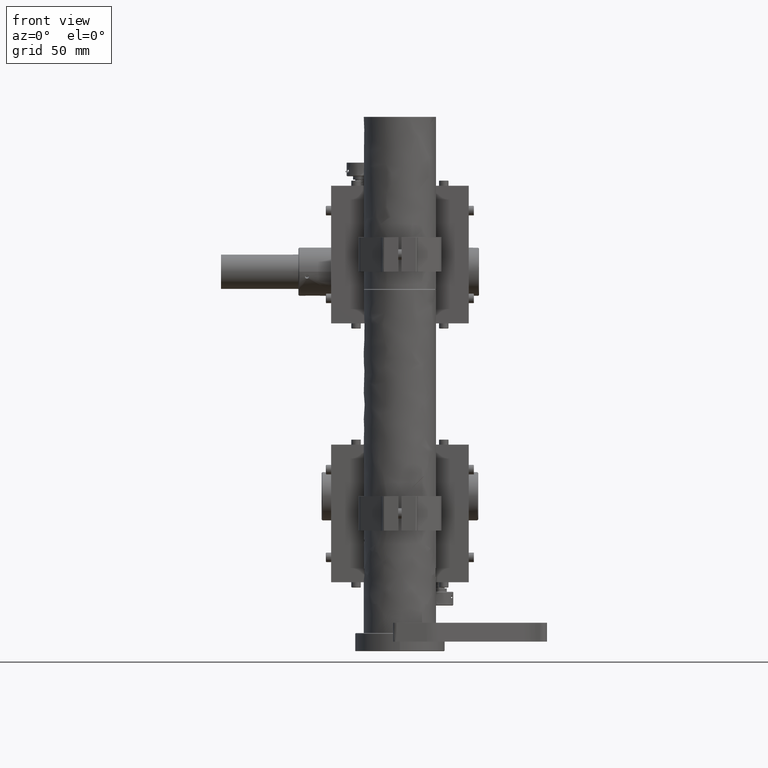
[diagram: clean part render]
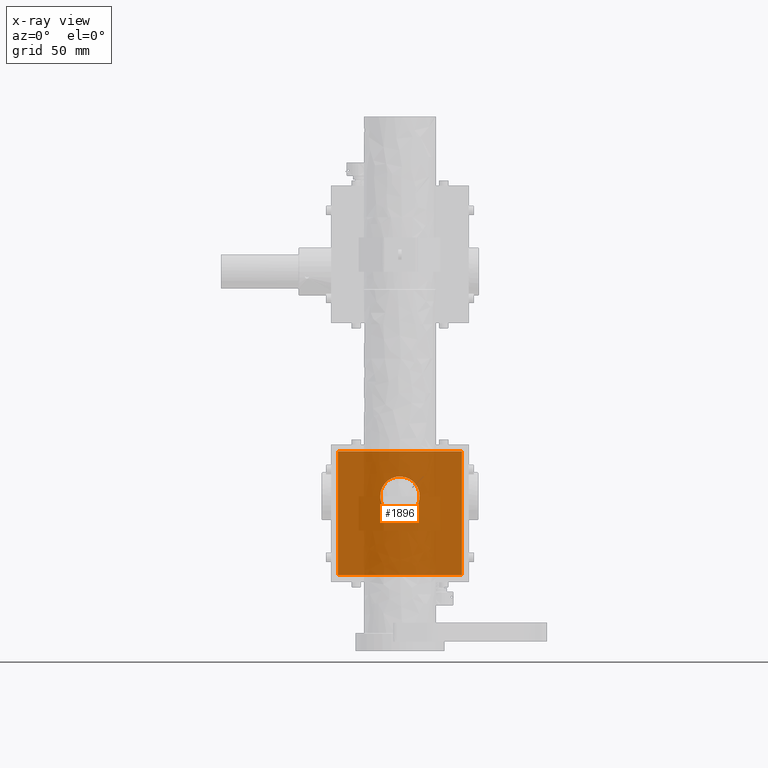
[diagram: x-ray — body ghosted, one internal face saturated and labeled with its STEP entity id]
A machine part, front view, then the same camera in x-ray: the body is ghosted and one INTERNAL B-rep face — a face not visible from any outside direction — is saturated and labeled: STEP entity #1896.
In plain terms, the highlighted face is a freeform B-spline surface patch.
Its self-contained STEP definition (entity closure, byte-faithful):
#1896=ADVANCED_FACE('',(#4982,#4335),#106625,.T.);
#4335=FACE_BOUND('',#7890,.T.);
#4982=FACE_OUTER_BOUND('',#7889,.T.);
#7889=EDGE_LOOP('',(#12935,#12936,#12937,#12938));
#7890=EDGE_LOOP('',(#12939,#12940,#12941));
#12935=ORIENTED_EDGE('',*,*,#87536,.F.);
#12936=ORIENTED_EDGE('',*,*,#87530,.F.);
#12937=ORIENTED_EDGE('',*,*,#87547,.F.);
#12938=ORIENTED_EDGE('',*,*,#87805,.F.);
#12939=ORIENTED_EDGE('',*,*,#87809,.T.);
#12940=ORIENTED_EDGE('',*,*,#87810,.T.);
#12941=ORIENTED_EDGE('',*,*,#87811,.T.);
#27691=B_SPLINE_CURVE_WITH_KNOTS('',1,(#138544,#138545),.UNSPECIFIED.,.F.,
 .F.,(2,2),(0.,72.0000000000004),.UNSPECIFIED.);
#27692=B_SPLINE_CURVE_WITH_KNOTS('',1,(#138546,#138547),.UNSPECIFIED.,.F.,
 .F.,(2,2),(0.,72.0000000000004),.UNSPECIFIED.);
#27698=B_SPLINE_CURVE_WITH_KNOTS('',1,(#138586,#138587),.UNSPECIFIED.,.F.,
 .F.,(2,2),(0.,72.),.UNSPECIFIED.);
#27699=B_SPLINE_CURVE_WITH_KNOTS('',1,(#138588,#138589),.UNSPECIFIED.,.F.,
 .F.,(2,2),(0.,72.),.UNSPECIFIED.);
#27721=B_SPLINE_CURVE_WITH_KNOTS('',1,(#138680,#138681),.UNSPECIFIED.,.F.,
 .F.,(2,2),(0.,72.),.UNSPECIFIED.);
#27722=B_SPLINE_CURVE_WITH_KNOTS('',1,(#138682,#138683),.UNSPECIFIED.,.F.,
 .F.,(2,2),(0.,72.),.UNSPECIFIED.);
#28177=B_SPLINE_CURVE_WITH_KNOTS('',1,(#141807,#141808),.UNSPECIFIED.,.F.,
 .F.,(2,2),(0.,72.0000000000003),.UNSPECIFIED.);
#28178=B_SPLINE_CURVE_WITH_KNOTS('',1,(#141809,#141810),.UNSPECIFIED.,.F.,
 .F.,(2,2),(0.,72.0000000000003),.UNSPECIFIED.);
#28179=B_SPLINE_CURVE_WITH_KNOTS('',1,(#141839,#141840),.UNSPECIFIED.,.F.,
 .F.,(2,2),(0.,72.),.UNSPECIFIED.);
#28180=B_SPLINE_CURVE_WITH_KNOTS('',1,(#141841,#141842),.UNSPECIFIED.,.F.,
 .F.,(2,2),(0.,72.0000000000004),.UNSPECIFIED.);
#28181=B_SPLINE_CURVE_WITH_KNOTS('',1,(#141843,#141844),.UNSPECIFIED.,.F.,
 .F.,(2,2),(0.,72.),.UNSPECIFIED.);
#28182=B_SPLINE_CURVE_WITH_KNOTS('',1,(#141845,#141846),.UNSPECIFIED.,.F.,
 .F.,(2,2),(0.,72.0000000000003),.UNSPECIFIED.);
#28186=B_SPLINE_CURVE_WITH_KNOTS('',1,(#141877,#141878),.UNSPECIFIED.,.F.,
 .F.,(2,2),(35.9979394211587,71.9958788423173),.UNSPECIFIED.);
#28187=B_SPLINE_CURVE_WITH_KNOTS('',1,(#141879,#141880),.UNSPECIFIED.,.F.,
 .F.,(2,2),(17.9989697105793,35.9979394211587),.UNSPECIFIED.);
#28192=B_SPLINE_CURVE_WITH_KNOTS('',1,(#141891,#141892),.UNSPECIFIED.,.F.,
 .F.,(2,2),(0.,17.9989697105793),.UNSPECIFIED.);
#48135=PCURVE('',#106599,#63631);
#48142=PCURVE('',#106600,#63638);
#48166=PCURVE('',#106601,#63662);
#48654=PCURVE('',#106624,#64150);
#48658=PCURVE('',#106625,#64154);
#48659=PCURVE('',#106625,#64155);
#48660=PCURVE('',#106625,#64156);
#48661=PCURVE('',#106625,#64157);
#48662=PCURVE('',#106625,#64158);
#48663=PCURVE('',#106625,#64159);
#48664=PCURVE('',#106625,#64160);
#48668=PCURVE('',#105374,#64164);
#48669=PCURVE('',#105374,#64165);
#48674=PCURVE('',#105375,#64170);
#63631=DEFINITIONAL_REPRESENTATION('',(#27692),#277684);
#63638=DEFINITIONAL_REPRESENTATION('',(#27699),#277684);
#63662=DEFINITIONAL_REPRESENTATION('',(#27722),#277684);
#64150=DEFINITIONAL_REPRESENTATION('',(#28178),#277684);
#64154=DEFINITIONAL_REPRESENTATION('',(#28179),#277684);
#64155=DEFINITIONAL_REPRESENTATION('',(#28180),#277684);
#64156=DEFINITIONAL_REPRESENTATION('',(#28181),#277684);
#64157=DEFINITIONAL_REPRESENTATION('',(#28182),#277684);
#64158=DEFINITIONAL_REPRESENTATION('',(#97369),#277684);
#64159=DEFINITIONAL_REPRESENTATION('',(#97371),#277684);
#64160=DEFINITIONAL_REPRESENTATION('',(#97373),#277684);
#64164=DEFINITIONAL_REPRESENTATION('',(#28186),#277684);
#64165=DEFINITIONAL_REPRESENTATION('',(#28187),#277684);
#64170=DEFINITIONAL_REPRESENTATION('',(#28192),#277684);
#78223=SURFACE_CURVE('',#27691,(#48135,#48659),.PCURVE_S1.);
#78229=SURFACE_CURVE('',#27698,(#48142,#48658),.PCURVE_S1.);
#78240=SURFACE_CURVE('',#27721,(#48166,#48660),.PCURVE_S1.);
#78498=SURFACE_CURVE('',#28177,(#48654,#48661),.PCURVE_S1.);
#78502=SURFACE_CURVE('',#97368,(#48662,#48668),.PCURVE_S1.);
#78503=SURFACE_CURVE('',#97370,(#48663,#48674),.PCURVE_S1.);
#78504=SURFACE_CURVE('',#97372,(#48664,#48669),.PCURVE_S1.);
#87530=EDGE_CURVE('',#101054,#101051,#78223,.T.);
#87536=EDGE_CURVE('',#101051,#101058,#78229,.T.);
#87547=EDGE_CURVE('',#101065,#101054,#78240,.T.);
#87805=EDGE_CURVE('',#101058,#101065,#78498,.T.);
#87809=EDGE_CURVE('',#101248,#101246,#78502,.T.);
#87810=EDGE_CURVE('',#101246,#101247,#78503,.T.);
#87811=EDGE_CURVE('',#101247,#101248,#78504,.T.);
#97368=(
BOUNDED_CURVE()
B_SPLINE_CURVE(2,(#141847,#141848,#141849,#141850,#141851),
 .UNSPECIFIED.,.F.,.F.)
B_SPLINE_CURVE_WITH_KNOTS((3,2,3),(35.9979394211587,53.9969091317379,71.9958788423173),
 .UNSPECIFIED.)
CURVE()
GEOMETRIC_REPRESENTATION_ITEM()
RATIONAL_B_SPLINE_CURVE((1.,0.707106781186548,1.,0.707106781186548,1.))
REPRESENTATION_ITEM('')
);
#97369=(
BOUNDED_CURVE()
B_SPLINE_CURVE(2,(#141852,#141853,#141854,#141855,#141856),
 .UNSPECIFIED.,.F.,.F.)
B_SPLINE_CURVE_WITH_KNOTS((3,2,3),(35.9979394211587,53.996909131738,71.9958788423173),
 .UNSPECIFIED.)
CURVE()
GEOMETRIC_REPRESENTATION_ITEM()
RATIONAL_B_SPLINE_CURVE((1.,0.707106781186548,1.,0.707106781186548,1.))
REPRESENTATION_ITEM('')
);
#97370=(
BOUNDED_CURVE()
B_SPLINE_CURVE(2,(#141857,#141858,#141859),.UNSPECIFIED.,.F.,.F.)
B_SPLINE_CURVE_WITH_KNOTS((3,3),(0.,17.9989697105793),.UNSPECIFIED.)
CURVE()
GEOMETRIC_REPRESENTATION_ITEM()
RATIONAL_B_SPLINE_CURVE((1.,0.707106781186548,1.))
REPRESENTATION_ITEM('')
);
#97371=(
BOUNDED_CURVE()
B_SPLINE_CURVE(2,(#141860,#141861,#141862),.UNSPECIFIED.,.F.,.F.)
B_SPLINE_CURVE_WITH_KNOTS((3,3),(0.,17.9989697105793),.UNSPECIFIED.)
CURVE()
GEOMETRIC_REPRESENTATION_ITEM()
RATIONAL_B_SPLINE_CURVE((1.,0.707106781186551,1.))
REPRESENTATION_ITEM('')
);
#97372=(
BOUNDED_CURVE()
B_SPLINE_CURVE(2,(#141863,#141864,#141865),.UNSPECIFIED.,.F.,.F.)
B_SPLINE_CURVE_WITH_KNOTS((3,3),(17.9989697105793,35.9979394211587),
 .UNSPECIFIED.)
CURVE()
GEOMETRIC_REPRESENTATION_ITEM()
RATIONAL_B_SPLINE_CURVE((1.,0.707106781186553,1.))
REPRESENTATION_ITEM('')
);
#97373=(
BOUNDED_CURVE()
B_SPLINE_CURVE(2,(#141866,#141867,#141868),.UNSPECIFIED.,.F.,.F.)
B_SPLINE_CURVE_WITH_KNOTS((3,3),(17.9989697105793,35.9979394211587),
 .UNSPECIFIED.)
CURVE()
GEOMETRIC_REPRESENTATION_ITEM()
RATIONAL_B_SPLINE_CURVE((1.,0.707106781186553,1.))
REPRESENTATION_ITEM('')
);
#101051=VERTEX_POINT('',#133664);
#101054=VERTEX_POINT('',#133667);
#101058=VERTEX_POINT('',#133671);
#101065=VERTEX_POINT('',#133678);
#101246=VERTEX_POINT('',#133859);
#101247=VERTEX_POINT('',#133860);
#101248=VERTEX_POINT('',#133861);
#105374=(
BOUNDED_SURFACE()
B_SPLINE_SURFACE(1,2,((#128417,#128418,#128419,#128420,#128421,#128422,
#128423,#128424,#128425),(#128426,#128427,#128428,#128429,#128430,#128431,
#128432,#128433,#128434)),.UNSPECIFIED.,.F.,.F.,.F.)
B_SPLINE_SURFACE_WITH_KNOTS((2,2),(3,2,2,2,3),(0.,7.44000000000062),(0.,
1.5707963267949,3.14159265358979,4.71238898038469,6.28318530717959),
 .UNSPECIFIED.)
GEOMETRIC_REPRESENTATION_ITEM()
RATIONAL_B_SPLINE_SURFACE(((1.,0.707106781186548,1.,0.707106781186548,1.,
0.707106781186548,1.,0.707106781186548,1.),(1.,0.707106781186548,1.,0.707106781186548,
1.,0.707106781186548,1.,0.707106781186548,1.)))
REPRESENTATION_ITEM('')
SURFACE()
);
#105375=(
BOUNDED_SURFACE()
B_SPLINE_SURFACE(1,2,((#128435,#128436,#128437,#128438,#128439,#128440,
#128441,#128442,#128443),(#128444,#128445,#128446,#128447,#128448,#128449,
#128450,#128451,#128452)),.UNSPECIFIED.,.F.,.F.,.F.)
B_SPLINE_SURFACE_WITH_KNOTS((2,2),(3,2,2,2,3),(0.,7.44000000000062),(0.,
1.5707963267949,3.14159265358979,4.71238898038469,6.28318530717959),
 .UNSPECIFIED.)
GEOMETRIC_REPRESENTATION_ITEM()
RATIONAL_B_SPLINE_SURFACE(((1.,0.707106781186548,1.,0.707106781186548,1.,
0.707106781186548,1.,0.707106781186548,1.),(1.,0.707106781186548,1.,0.707106781186548,
1.,0.707106781186548,1.,0.707106781186548,1.)))
REPRESENTATION_ITEM('')
SURFACE()
);
#106599=B_SPLINE_SURFACE_WITH_KNOTS('',1,1,((#127333,#127334),(#127335,
#127336)),.UNSPECIFIED.,.F.,.F.,.F.,(2,2),(2,2),(-43.3200000003167,43.3200000003165),
(-35.5200000000019,35.5200000000019),.UNSPECIFIED.);
#106600=B_SPLINE_SURFACE_WITH_KNOTS('',1,1,((#127337,#127338),(#127339,
#127340)),.UNSPECIFIED.,.F.,.F.,.F.,(2,2),(2,2),(-43.3200000032431,43.3200000032431),
(-35.5200000000022,35.5200000000022),.UNSPECIFIED.);
#106601=B_SPLINE_SURFACE_WITH_KNOTS('',1,1,((#127413,#127414),(#127415,
#127416)),.UNSPECIFIED.,.F.,.F.,.F.,(2,2),(2,2),(-43.3200000032431,43.3200000032431),
(-35.5200000000019,35.5200000000019),.UNSPECIFIED.);
#106624=B_SPLINE_SURFACE_WITH_KNOTS('',1,1,((#128409,#128410),(#128411,
#128412)),.UNSPECIFIED.,.F.,.F.,.F.,(2,2),(2,2),(-43.3200000003167,43.3200000003165),
(-35.5200000000014,35.5200000000015),.UNSPECIFIED.);
#106625=B_SPLINE_SURFACE_WITH_KNOTS('',1,1,((#128413,#128414),(#128415,
#128416)),.UNSPECIFIED.,.F.,.F.,.F.,(2,2),(2,2),(-86.640000000533,1.71786673774932E-09),
(-5.55576917804501E-10,86.6400000016956),.UNSPECIFIED.);
#127333=CARTESIAN_POINT('',(235.797538868108,-79.0200000000027,-122.820000000569));
#127334=CARTESIAN_POINT('',(235.797538868108,-7.97999999999887,-122.820000000569));
#127335=CARTESIAN_POINT('',(235.797538868108,-79.0200000000031,-36.1799999999361));
#127336=CARTESIAN_POINT('',(235.797538868108,-7.97999999999929,-36.1799999999358));
#127337=CARTESIAN_POINT('',(156.47753886585,-7.97999999999838,-43.4999999987304));
#127338=CARTESIAN_POINT('',(156.477538865849,-79.0200000000027,-43.4999999987304));
#127339=CARTESIAN_POINT('',(243.117538872336,-7.9799999999993,-43.4999999987304));
#127340=CARTESIAN_POINT('',(243.117538872335,-79.0200000000036,-43.4999999987304));
#127413=CARTESIAN_POINT('',(156.477538865849,-79.0200000000022,-115.49999999873));
#127414=CARTESIAN_POINT('',(156.47753886585,-7.97999999999839,-115.49999999873));
#127415=CARTESIAN_POINT('',(243.117538872335,-79.0200000000032,-115.49999999873));
#127416=CARTESIAN_POINT('',(243.117538872336,-7.97999999999936,-115.49999999873));
#128409=CARTESIAN_POINT('',(163.797538868108,-7.97999999999893,-122.820000000569));
#128410=CARTESIAN_POINT('',(163.797538868108,-79.0200000000018,-122.820000000569));
#128411=CARTESIAN_POINT('',(163.797538868108,-7.9799999999994,-36.1799999999357));
#128412=CARTESIAN_POINT('',(163.797538868108,-79.0200000000023,-36.1799999999361));
#128413=CARTESIAN_POINT('',(156.477538865842,-73.0000000000015,-122.820000001041));
#128414=CARTESIAN_POINT('',(243.117538868094,-73.0000000000015,-122.820000001041));
#128415=CARTESIAN_POINT('',(156.477538865842,-73.0000000000015,-36.1799999987897));
#128416=CARTESIAN_POINT('',(243.117538868094,-73.0000000000015,-36.1799999987897));
#128417=CARTESIAN_POINT('',(188.339038866395,-72.2800000000012,-89.5000000005077));
#128418=CARTESIAN_POINT('',(188.339038866395,-72.2800000000012,-100.958500000508));
#128419=CARTESIAN_POINT('',(199.797538866395,-72.2800000000012,-100.958500000508));
#128420=CARTESIAN_POINT('',(211.256038866395,-72.2800000000012,-100.958500000508));
#128421=CARTESIAN_POINT('',(211.256038866395,-72.2800000000012,-89.5000000005077));
#128422=CARTESIAN_POINT('',(211.256038866395,-72.2800000000012,-78.0415000005077));
#128423=CARTESIAN_POINT('',(199.797538866395,-72.2800000000012,-78.0415000005077));
#128424=CARTESIAN_POINT('',(188.339038866395,-72.2800000000012,-78.0415000005077));
#128425=CARTESIAN_POINT('',(188.339038866395,-72.2800000000012,-89.5000000005077));
#128426=CARTESIAN_POINT('',(188.339038866395,-79.7200000000018,-89.5000000005077));
#128427=CARTESIAN_POINT('',(188.339038866395,-79.7200000000018,-100.958500000508));
#128428=CARTESIAN_POINT('',(199.797538866395,-79.7200000000018,-100.958500000508));
#128429=CARTESIAN_POINT('',(211.256038866395,-79.7200000000018,-100.958500000508));
#128430=CARTESIAN_POINT('',(211.256038866395,-79.7200000000018,-89.5000000005076));
#128431=CARTESIAN_POINT('',(211.256038866395,-79.7200000000018,-78.0415000005076));
#128432=CARTESIAN_POINT('',(199.797538866395,-79.7200000000018,-78.0415000005076));
#128433=CARTESIAN_POINT('',(188.339038866395,-79.7200000000018,-78.0415000005077));
#128434=CARTESIAN_POINT('',(188.339038866395,-79.7200000000018,-89.5000000005077));
#128435=CARTESIAN_POINT('',(188.339038866395,-72.2800000000012,-89.5000000005077));
#128436=CARTESIAN_POINT('',(188.339038866395,-72.2800000000012,-100.958500000508));
#128437=CARTESIAN_POINT('',(199.797538866395,-72.2800000000012,-100.958500000508));
#128438=CARTESIAN_POINT('',(211.256038866395,-72.2800000000012,-100.958500000508));
#128439=CARTESIAN_POINT('',(211.256038866395,-72.2800000000012,-89.5000000005077));
#128440=CARTESIAN_POINT('',(211.256038866395,-72.2800000000012,-78.0415000005077));
#128441=CARTESIAN_POINT('',(199.797538866395,-72.2800000000012,-78.0415000005077));
#128442=CARTESIAN_POINT('',(188.339038866395,-72.2800000000012,-78.0415000005077));
#128443=CARTESIAN_POINT('',(188.339038866395,-72.2800000000012,-89.5000000005077));
#128444=CARTESIAN_POINT('',(188.339038866395,-79.7200000000018,-89.5000000005077));
#128445=CARTESIAN_POINT('',(188.339038866395,-79.7200000000018,-100.958500000508));
#128446=CARTESIAN_POINT('',(199.797538866395,-79.7200000000018,-100.958500000508));
#128447=CARTESIAN_POINT('',(211.256038866395,-79.7200000000018,-100.958500000508));
#128448=CARTESIAN_POINT('',(211.256038866395,-79.7200000000018,-89.5000000005076));
#128449=CARTESIAN_POINT('',(211.256038866395,-79.7200000000018,-78.0415000005076));
#128450=CARTESIAN_POINT('',(199.797538866395,-79.7200000000018,-78.0415000005076));
#128451=CARTESIAN_POINT('',(188.339038866395,-79.7200000000018,-78.0415000005077));
#128452=CARTESIAN_POINT('',(188.339038866395,-79.7200000000018,-89.5000000005077));
#133664=CARTESIAN_POINT('',(235.797538866723,-73.0000000000021,-43.499999998895));
#133667=CARTESIAN_POINT('',(235.797538867973,-73.0000000000018,-115.499999998895));
#133671=CARTESIAN_POINT('',(163.797538866723,-73.0000000000016,-43.5000000001456));
#133678=CARTESIAN_POINT('',(163.797538867973,-73.0000000000013,-115.500000000145));
#133859=CARTESIAN_POINT('',(199.797538866395,-73.0000000000017,-78.0415000005077));
#133860=CARTESIAN_POINT('',(188.339038866395,-73.0000000000016,-89.5000000005077));
#133861=CARTESIAN_POINT('',(199.797538866395,-73.0000000000016,-100.958500000508));
#138544=CARTESIAN_POINT('',(235.797538867973,-73.0000000000018,-115.499999998895));
#138545=CARTESIAN_POINT('',(235.797538866723,-73.0000000000021,-43.499999998895));
#138546=CARTESIAN_POINT('',(-35.9999999987244,-29.5000000000012));
#138547=CARTESIAN_POINT('',(36.0000000012753,-29.5000000000012));
#138586=CARTESIAN_POINT('',(235.797538866723,-73.0000000000021,-43.499999998895));
#138587=CARTESIAN_POINT('',(163.797538866723,-73.0000000000016,-43.5000000001456));
#138588=CARTESIAN_POINT('',(35.9999999969378,29.500000000001));
#138589=CARTESIAN_POINT('',(-36.0000000030622,29.500000000001));
#138680=CARTESIAN_POINT('',(163.797538867973,-73.0000000000013,-115.500000000145));
#138681=CARTESIAN_POINT('',(235.797538867973,-73.0000000000018,-115.499999998895));
#138682=CARTESIAN_POINT('',(-36.0000000011862,-29.5000000000008));
#138683=CARTESIAN_POINT('',(35.9999999988138,-29.5000000000008));
#141807=CARTESIAN_POINT('',(163.797538866723,-73.0000000000016,-43.5000000001456));
#141808=CARTESIAN_POINT('',(163.797538867973,-73.0000000000013,-115.500000000145));
#141809=CARTESIAN_POINT('',(35.9999999993994,29.5000000000008));
#141810=CARTESIAN_POINT('',(-36.0000000006004,29.5000000000008));
#141839=CARTESIAN_POINT('',(-7.3199999984697,79.319999999632));
#141840=CARTESIAN_POINT('',(-7.3200000003456,7.31999999963202));
#141841=CARTESIAN_POINT('',(-79.3199999984694,79.320000001508));
#141842=CARTESIAN_POINT('',(-7.3199999984697,79.319999999632));
#141843=CARTESIAN_POINT('',(-79.3200000003454,7.32000000150802));
#141844=CARTESIAN_POINT('',(-79.3199999984694,79.320000001508));
#141845=CARTESIAN_POINT('',(-7.3200000003456,7.31999999963202));
#141846=CARTESIAN_POINT('',(-79.3200000003454,7.32000000150802));
#141847=CARTESIAN_POINT('',(199.797538866395,-73.0000000000016,-100.958500000508));
#141848=CARTESIAN_POINT('',(211.256038866395,-73.0000000000016,-100.958500000508));
#141849=CARTESIAN_POINT('',(211.256038866395,-73.0000000000016,-89.5000000005077));
#141850=CARTESIAN_POINT('',(211.256038866395,-73.0000000000016,-78.0415000005077));
#141851=CARTESIAN_POINT('',(199.797538866395,-73.0000000000017,-78.0415000005077));
#141852=CARTESIAN_POINT('',(-64.7785000000004,43.319999999997));
#141853=CARTESIAN_POINT('',(-64.7785000000004,54.778499999997));
#141854=CARTESIAN_POINT('',(-53.3200000000001,54.778499999997));
#141855=CARTESIAN_POINT('',(-41.8615000000001,54.778499999997));
#141856=CARTESIAN_POINT('',(-41.8615000000001,43.319999999997));
#141857=CARTESIAN_POINT('',(199.797538866395,-73.0000000000017,-78.0415000005077));
#141858=CARTESIAN_POINT('',(188.339038866395,-73.0000000000016,-78.0415000005077));
#141859=CARTESIAN_POINT('',(188.339038866395,-73.0000000000016,-89.5000000005077));
#141860=CARTESIAN_POINT('',(-41.8615000000001,43.319999999997));
#141861=CARTESIAN_POINT('',(-41.8615000000001,31.861499999997));
#141862=CARTESIAN_POINT('',(-53.3200000000001,31.861499999997));
#141863=CARTESIAN_POINT('',(188.339038866395,-73.0000000000016,-89.5000000005077));
#141864=CARTESIAN_POINT('',(188.339038866395,-73.0000000000016,-100.958500000508));
#141865=CARTESIAN_POINT('',(199.797538866395,-73.0000000000016,-100.958500000508));
#141866=CARTESIAN_POINT('',(-53.3200000000001,31.861499999997));
#141867=CARTESIAN_POINT('',(-64.7785000000004,31.861499999997));
#141868=CARTESIAN_POINT('',(-64.7785000000004,43.319999999997));
#141877=CARTESIAN_POINT('',(0.720000000000516,1.5707963267949));
#141878=CARTESIAN_POINT('',(0.720000000000615,4.71238898038469));
#141879=CARTESIAN_POINT('',(0.720000000000514,0.));
#141880=CARTESIAN_POINT('',(0.720000000000516,1.5707963267949));
#141891=CARTESIAN_POINT('',(0.720000000000615,4.71238898038469));
#141892=CARTESIAN_POINT('',(0.720000000000514,6.28318530717959));
#277684=(
GEOMETRIC_REPRESENTATION_CONTEXT(2)
PARAMETRIC_REPRESENTATION_CONTEXT()
REPRESENTATION_CONTEXT('pspace','')
);